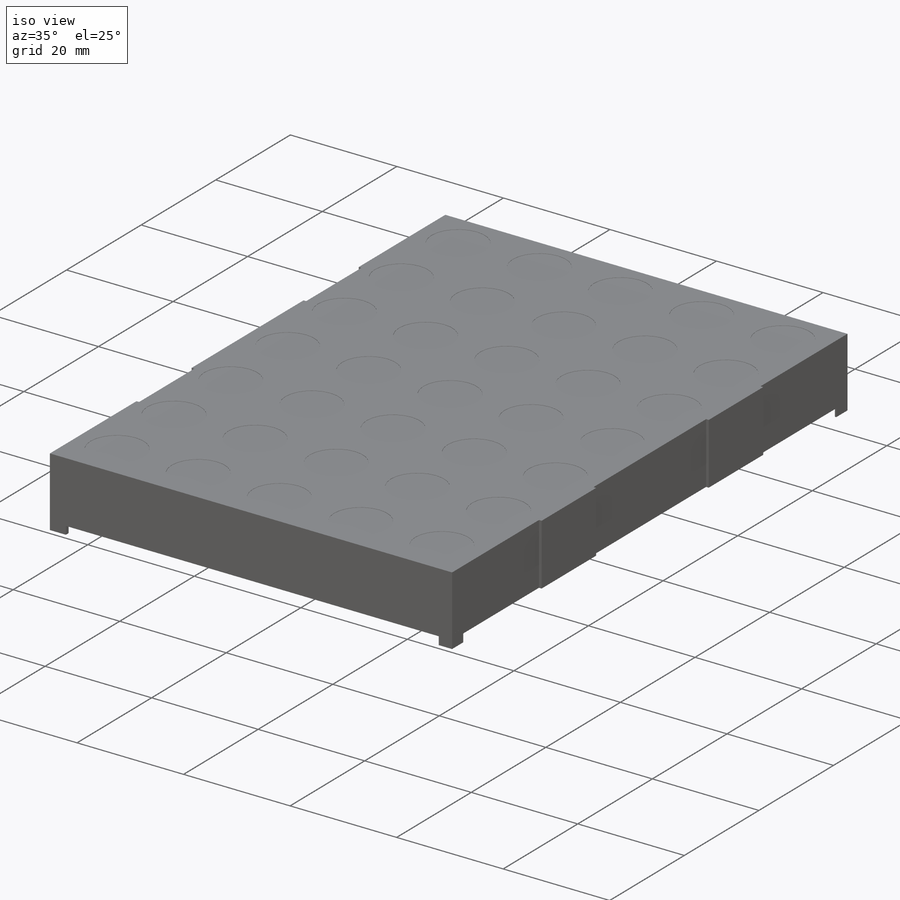
[diagram: iso view]
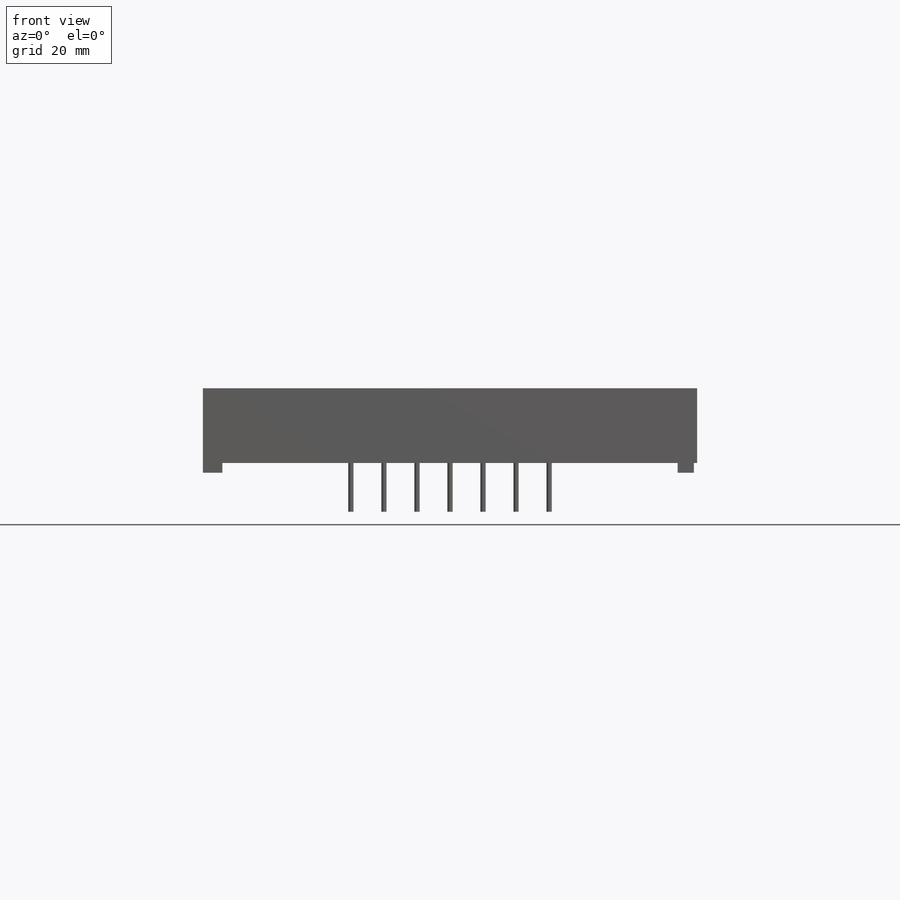
[diagram: front view]
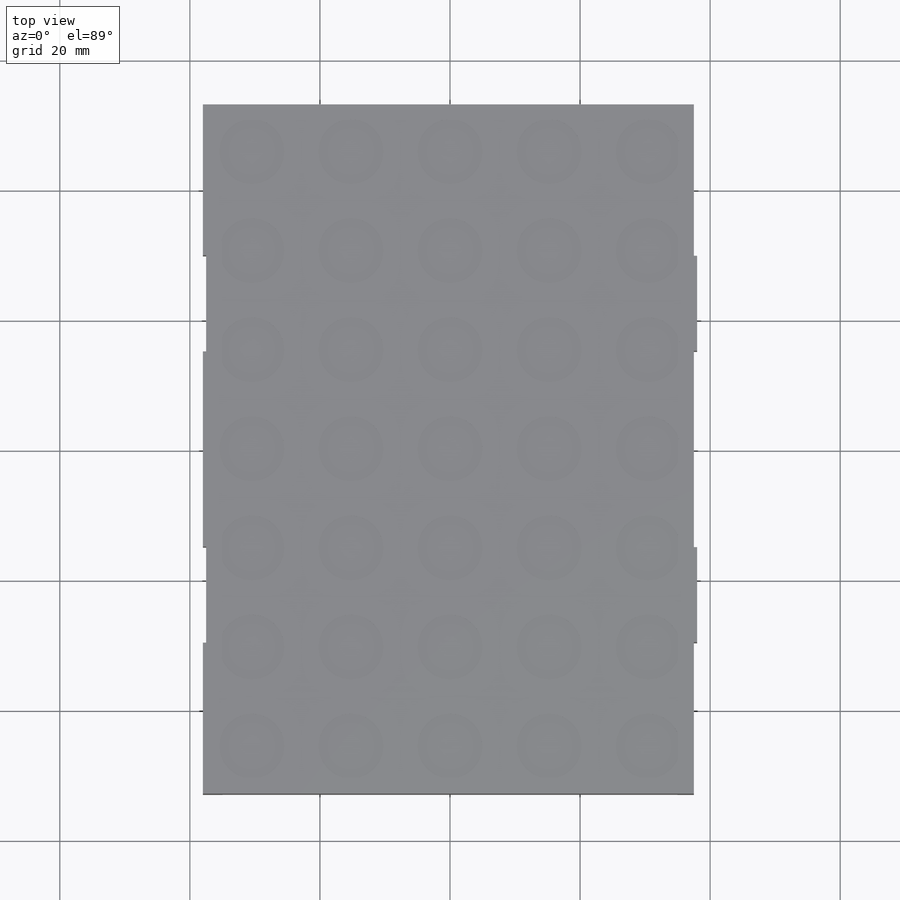
[diagram: top view]
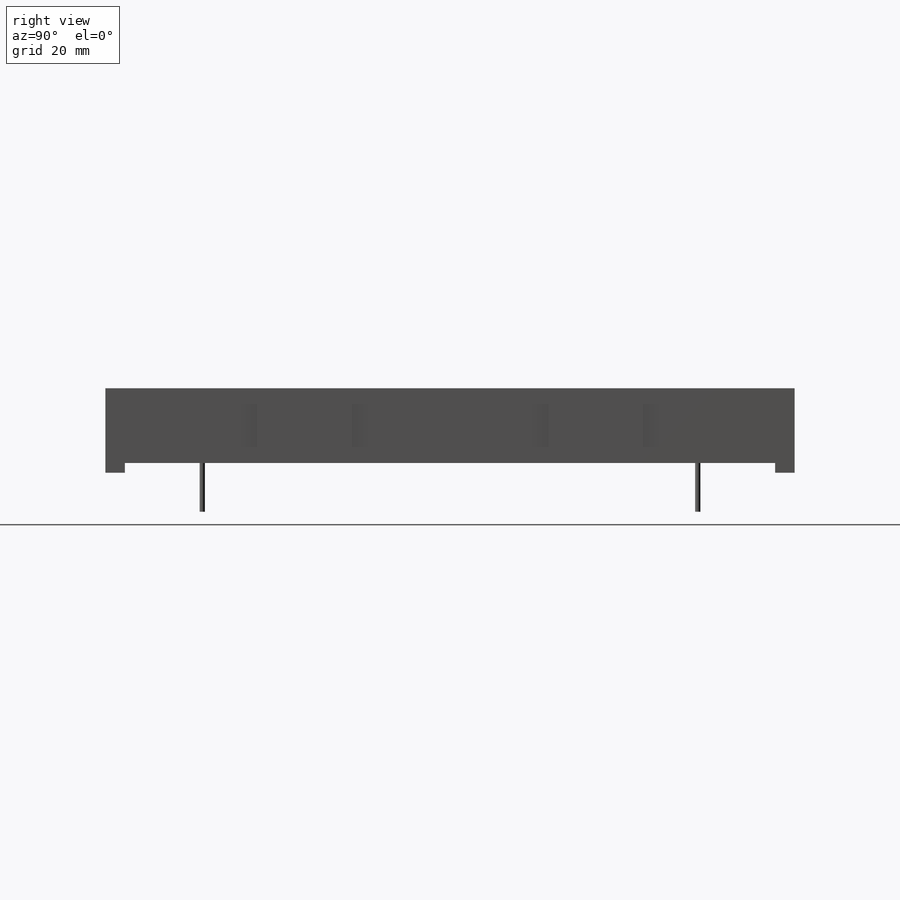
[diagram: right view]
SOLIDWORKS PART (.sldprt)
format: sldprt  version: not decoded by parser v0  size: 966,656 bytes
history: native  units: mm
features: sketch x8, cut_extrude x5, extrude x3, material x1 (+11 scaffold rows collapsed)
feature tree (28):
  scaffold x11  (default folders/planes/origin — collapsed)
  material  "Material <not specified>"
  sketch  "Sketch1"  dims[D1=106.0mm D2=13.0mm D3=1.5mm D4=3.0mm D5=3.0mm]
  extrude  "Extrude1"  Depth=76mm
  sketch  "Sketch2"  dims[c1.D1=2.0mm c1.D2=10.0mm c2.D1=15.24mm c2.D3=15.24mm c2.D4=15.24mm c2.D5=15.24mm c2.D6=15.24mm c2.D7=15.24mm c2.D8=15.24mm c2.D9=15.24mm c2.D10=15.24mm c2.D11=15.24mm c2.D12=0.5mm c2.D13=23.3mm c2.D14=30.2mm c2.D15=23.3mm c2.D16=14.6mm c2.D17=14.8mm c2.D18=14.8mm c2.D19=23.2mm c2.D20=30.0mm c2.D21=23.2mm]
  sketch  "Sketch3"  dims[D1=1.5mm D2=3.0mm D3=3.0mm]
  cut_extrude  "Cut-Extrude1"  [1 undecoded]
  cut_extrude  "Cut-Extrude2"  Depth=0.05mm
  sketch  "Sketch4"  dims[c1.D9=0.8mm c1.D1=2.54mm c1.D2=2.54mm c1.D3=2.54mm c1.D4=0.5mm c1.D5=0.5mm c1.D6=2.54mm c1.D7=2.54mm c1.D8=7.62mm c2.D1=2.54mm c2.D2=2.54mm c2.D3=2.54mm c2.D4=2.54mm c2.D5=2.54mm c2.D6=7.62mm c2.D7=0.75mm c2.D8=0.75mm c3.D1=5.08mm c3.D2=5.08mm c3.D3=5.08mm c3.D4=5.08mm c3.D5=5.08mm c3.D6=5.08mm c3.D10=3.83mm c3.D11=76.2mm]
  extrude  "Extrude2"  [1 undecoded]
  extrude  "Extrude3"  [1 undecoded]
  sketch  "Sketch4<3>"  dims[D1=6.0mm]
  cut_extrude  "Cut-Extrude3"  [1 undecoded]
  sketch  "Sketch4<4>"
  cut_extrude  "Cut-Extrude5"  [1 undecoded]
  sketch  "Sketch2<4>"
  sketch  "Sketch6"  dims[D1=3.0mm]
  cut_extrude  "Cut-Extrude6"  Depth=0.01mm
decode coverage: 9 of 16 modeling features carry decoded parameters
note: 5 parameter values undecoded
summary: no parameter record found for 5 features
note: suppression state not decoded; provenance and decode notes live in map.json
